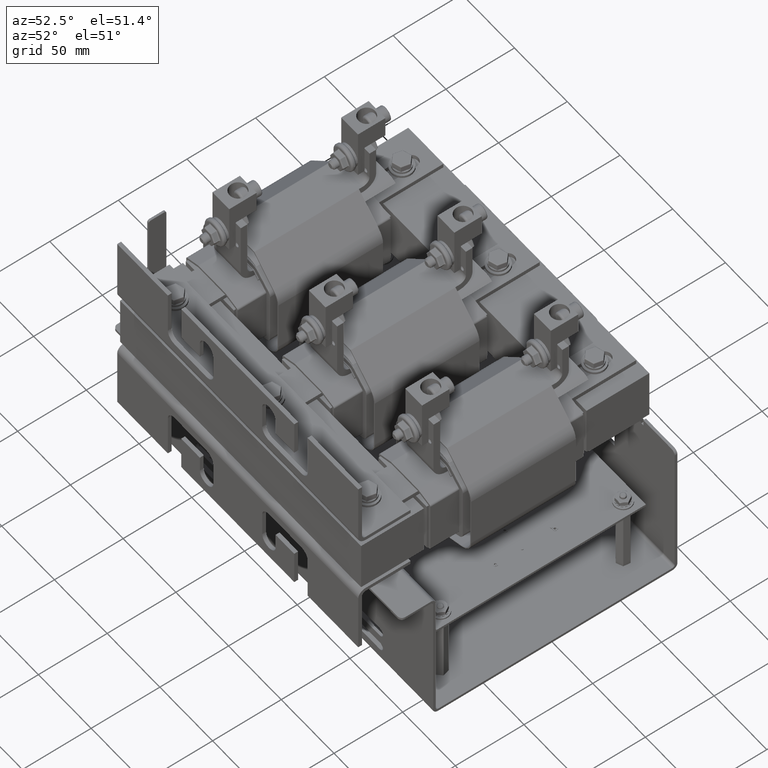
[diagram: clean part render]
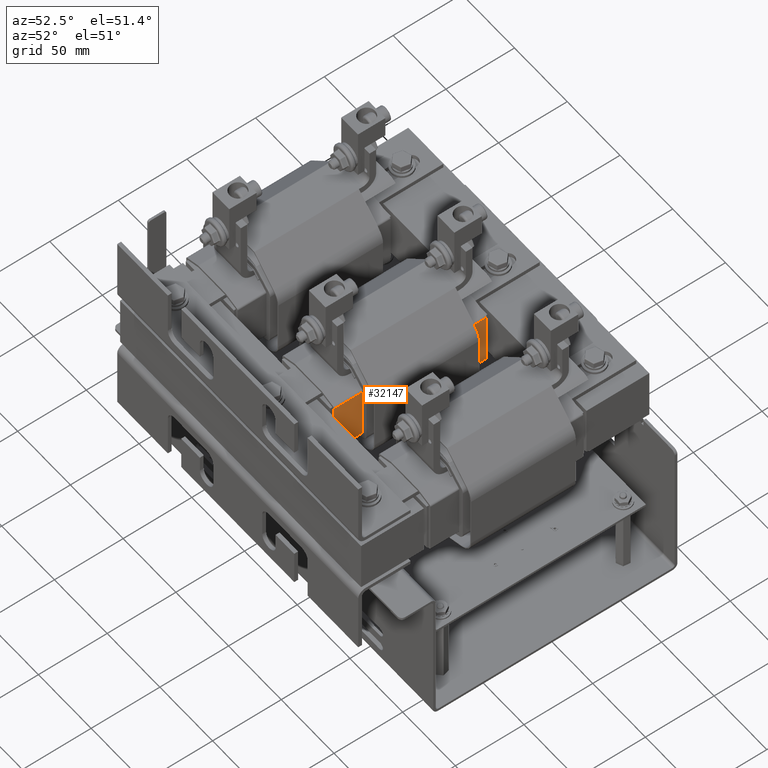
[diagram: same view with one face highlighted and labeled with its STEP entity id]
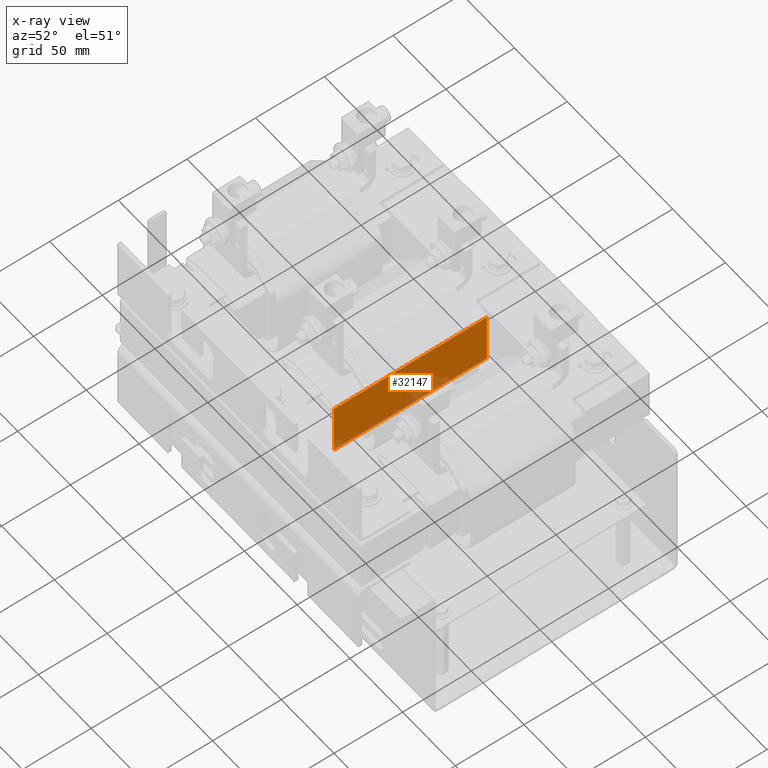
[diagram: x-ray of the same camera — body ghosted, the highlighted face saturated]
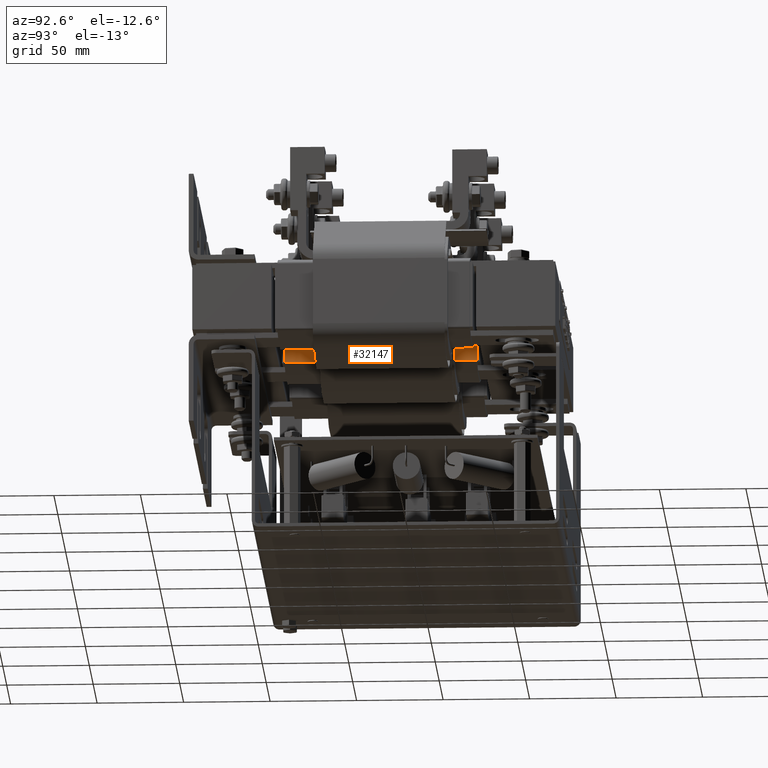
[diagram: same view with one face highlighted and labeled with its STEP entity id]
A machine part, auxiliary view. The second image highlights one B-rep face of the part: STEP entity #32147.
The next image is the same camera in x-ray: the body ghosted, the highlighted face saturated — about 12% of this face is hidden behind the body in this view.
A second angle (auxiliary view) of the same face is appended — the face is thin or edge-on in the first view.
In plain terms, the highlighted planar face has unit normal (1, 0, 0).
Its self-contained STEP definition (entity closure, byte-faithful):
#4218=FACE_OUTER_BOUND('',#6047,.T.);
#6047=EDGE_LOOP('',(#24273,#24274,#24275,#24276));
#8526=LINE('',#51729,#11616);
#8527=LINE('',#51732,#11617);
#8528=LINE('',#51734,#11618);
#8529=LINE('',#51735,#11619);
#11616=VECTOR('',#39315,0.393700787401575);
#11617=VECTOR('',#39318,0.393700787401575);
#11618=VECTOR('',#39319,0.393700787401575);
#11619=VECTOR('',#39320,0.393700787401575);
#14640=VERTEX_POINT('',#51725);
#14641=VERTEX_POINT('',#51727);
#14642=VERTEX_POINT('',#51731);
#14643=VERTEX_POINT('',#51733);
#18184=EDGE_CURVE('',#14640,#14641,#8526,.T.);
#18185=EDGE_CURVE('',#14640,#14642,#8527,.T.);
#18186=EDGE_CURVE('',#14643,#14641,#8528,.T.);
#18187=EDGE_CURVE('',#14642,#14643,#8529,.T.);
#24273=ORIENTED_EDGE('',*,*,#18185,.F.);
#24274=ORIENTED_EDGE('',*,*,#18184,.T.);
#24275=ORIENTED_EDGE('',*,*,#18186,.F.);
#24276=ORIENTED_EDGE('',*,*,#18187,.F.);
#30889=PLANE('',#34736);
#32147=ADVANCED_FACE('',(#4218),#30889,.T.);
#34736=AXIS2_PLACEMENT_3D('',#51730,#39316,#39317);
#39315=DIRECTION('',(0.,0.,1.));
#39316=DIRECTION('center_axis',(-1.,1.45698559662311E-16,0.));
#39317=DIRECTION('ref_axis',(-1.45698559662311E-16,-1.,0.));
#39318=DIRECTION('',(1.45698559662311E-16,1.,0.));
#39319=DIRECTION('',(-1.45698559662311E-16,-1.,0.));
#39320=DIRECTION('',(0.,0.,1.));
#51725=CARTESIAN_POINT('',(-0.0600000000012421,1.34954929995811E-12,0.));
#51727=CARTESIAN_POINT('',(-0.0600000000012421,1.34940178016645E-12,4.38));
#51729=CARTESIAN_POINT('',(-0.0600000000012421,1.34954929995811E-12,0.));
#51730=CARTESIAN_POINT('Origin',(-0.0600000000012419,1.49999999999912,0.));
#51731=CARTESIAN_POINT('',(-0.0600000000012419,1.49999999999912,0.));
#51732=CARTESIAN_POINT('',(-0.0600000000012421,1.34954929995811E-12,0.));
#51733=CARTESIAN_POINT('',(-0.0600000000012419,1.49999999999912,4.38));
#51734=CARTESIAN_POINT('',(-0.0600000000012421,1.34954929995811E-12,4.38));
#51735=CARTESIAN_POINT('',(-0.0600000000012419,1.49999999999912,0.));